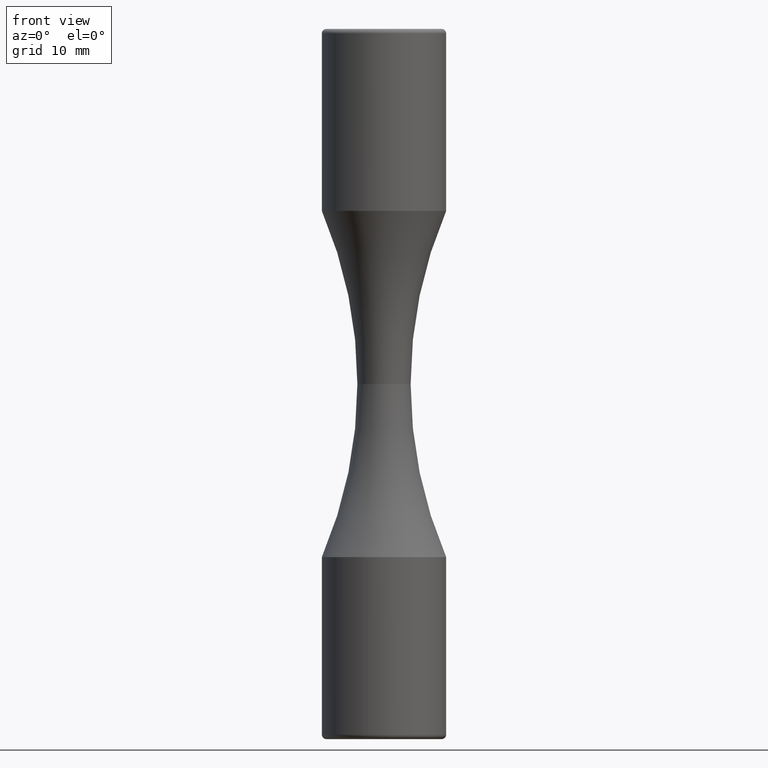
[diagram: clean part render]
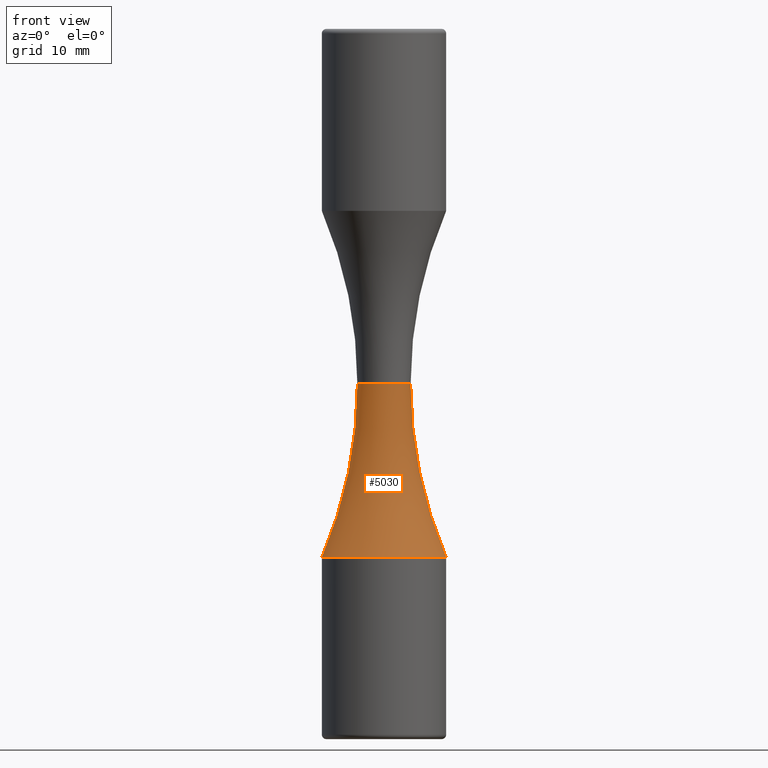
[diagram: same view with one face highlighted and labeled with its STEP entity id]
A machine part, front view. The second image highlights one B-rep face of the part: STEP entity #5030.
In plain terms, the highlighted toroidal blend (fillet) surface has major radius 52.5 mm and minor (blend) radius 49.5 mm.
Its self-contained STEP definition (entity closure, byte-faithful):
#131 = CARTESIAN_POINT ( 'NONE',  ( -6.999999999999995559, -3.469446951953614189E-15, -19.49358868961791558 ) ) ;
#916 = CARTESIAN_POINT ( 'NONE',  ( 0.000000000000000000, 0.000000000000000000, 0.000000000000000000 ) ) ;
#1576 = DIRECTION ( 'NONE',  ( -1.000000000000000000, 0.000000000000000000, 0.000000000000000000 ) ) ;
#1645 = CARTESIAN_POINT ( 'NONE',  ( 0.000000000000000000, -3.469446951953614189E-15, -19.49358868961791558 ) ) ;
#1915 = DIRECTION ( 'NONE',  ( 0.000000000000000000, -1.000000000000000000, 0.000000000000000000 ) ) ;
#1944 = VERTEX_POINT ( 'NONE', #10287 ) ;
#2228 = CARTESIAN_POINT ( 'NONE',  ( 52.50000000000000711, 6.429395695523604744E-15, 0.000000000000000000 ) ) ;
#2390 = ORIENTED_EDGE ( 'NONE', *, *, #3198, .F. ) ;
#2540 = AXIS2_PLACEMENT_3D ( 'NONE', #2715, #1915, #8062 ) ;
#2715 = CARTESIAN_POINT ( 'NONE',  ( -52.50000000000000711, 0.000000000000000000, 0.000000000000000000 ) ) ;
#2746 = VERTEX_POINT ( 'NONE', #5441 ) ;
#2927 = TOROIDAL_SURFACE ( 'NONE', #4695, 52.50000000000000711, 49.50000000000000000 ) ;
#3198 = EDGE_CURVE ( 'NONE', #10879, #1944, #3639, .T. ) ;
#3476 = CIRCLE ( 'NONE', #4474, 6.999999999999995559 ) ;
#3494 = DIRECTION ( 'NONE',  ( -1.000000000000000000, 0.000000000000000000, 0.000000000000000000 ) ) ;
#3639 = CIRCLE ( 'NONE', #2540, 49.50000000000000000 ) ;
#4066 = ORIENTED_EDGE ( 'NONE', *, *, #6480, .F. ) ;
#4474 = AXIS2_PLACEMENT_3D ( 'NONE', #1645, #10515, #1576 ) ;
#4695 = AXIS2_PLACEMENT_3D ( 'NONE', #916, #5423, #9808 ) ;
#4794 = DIRECTION ( 'NONE',  ( -1.000000000000000000, -1.224646799147353207E-16, 0.000000000000000000 ) ) ;
#5030 = ADVANCED_FACE ( 'NONE', ( #10499 ), #2927, .F. ) ;
#5156 = CARTESIAN_POINT ( 'NONE',  ( 6.999999999999995559, -2.612194192550467363E-15, -19.49358868961791558 ) ) ;
#5423 = DIRECTION ( 'NONE',  ( -0.000000000000000000, -0.000000000000000000, -1.000000000000000000 ) ) ;
#5441 = CARTESIAN_POINT ( 'NONE',  ( 3.000000000000002665, 3.673940397442066771E-16, 6.062001655779398511E-15 ) ) ;
#5977 = DIRECTION ( 'NONE',  ( -0.000000000000000000, -0.000000000000000000, -1.000000000000000000 ) ) ;
#6480 = EDGE_CURVE ( 'NONE', #7709, #10879, #3476, .T. ) ;
#6582 = AXIS2_PLACEMENT_3D ( 'NONE', #2228, #9189, #4794 ) ;
#6737 = ORIENTED_EDGE ( 'NONE', *, *, #8415, .T. ) ;
#7586 = CIRCLE ( 'NONE', #6582, 49.50000000000000000 ) ;
#7709 = VERTEX_POINT ( 'NONE', #5156 ) ;
#7838 = CARTESIAN_POINT ( 'NONE',  ( 0.000000000000000000, 0.000000000000000000, 6.062001655779398511E-15 ) ) ;
#8062 = DIRECTION ( 'NONE',  ( 0.000000000000000000, 0.000000000000000000, -1.000000000000000000 ) ) ;
#8415 = EDGE_CURVE ( 'NONE', #7709, #2746, #7586, .T. ) ;
#8557 = EDGE_LOOP ( 'NONE', ( #6737, #10679, #2390, #4066 ) ) ;
#9189 = DIRECTION ( 'NONE',  ( -1.224646799147353207E-16, 1.000000000000000000, 0.000000000000000000 ) ) ;
#9349 = CIRCLE ( 'NONE', #10649, 3.000000000000002665 ) ;
#9808 = DIRECTION ( 'NONE',  ( -1.000000000000000000, 0.000000000000000000, 0.000000000000000000 ) ) ;
#10169 = EDGE_CURVE ( 'NONE', #2746, #1944, #9349, .T. ) ;
#10287 = CARTESIAN_POINT ( 'NONE',  ( -3.000000000000002665, 0.000000000000000000, 6.062001655779398511E-15 ) ) ;
#10499 = FACE_OUTER_BOUND ( 'NONE', #8557, .T. ) ;
#10515 = DIRECTION ( 'NONE',  ( -0.000000000000000000, -0.000000000000000000, -1.000000000000000000 ) ) ;
#10649 = AXIS2_PLACEMENT_3D ( 'NONE', #7838, #5977, #3494 ) ;
#10679 = ORIENTED_EDGE ( 'NONE', *, *, #10169, .T. ) ;
#10879 = VERTEX_POINT ( 'NONE', #131 ) ;